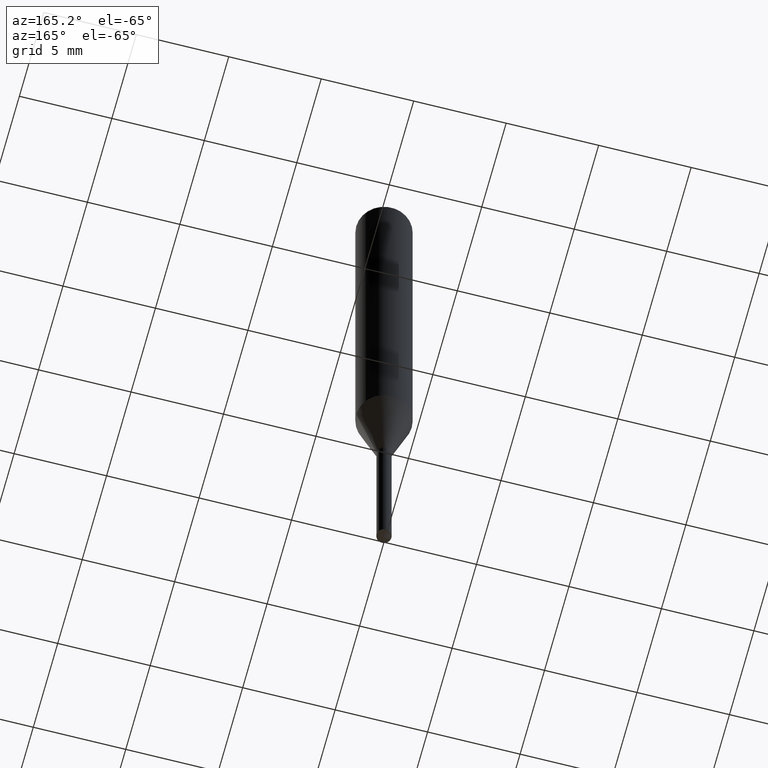
[diagram: clean part render]
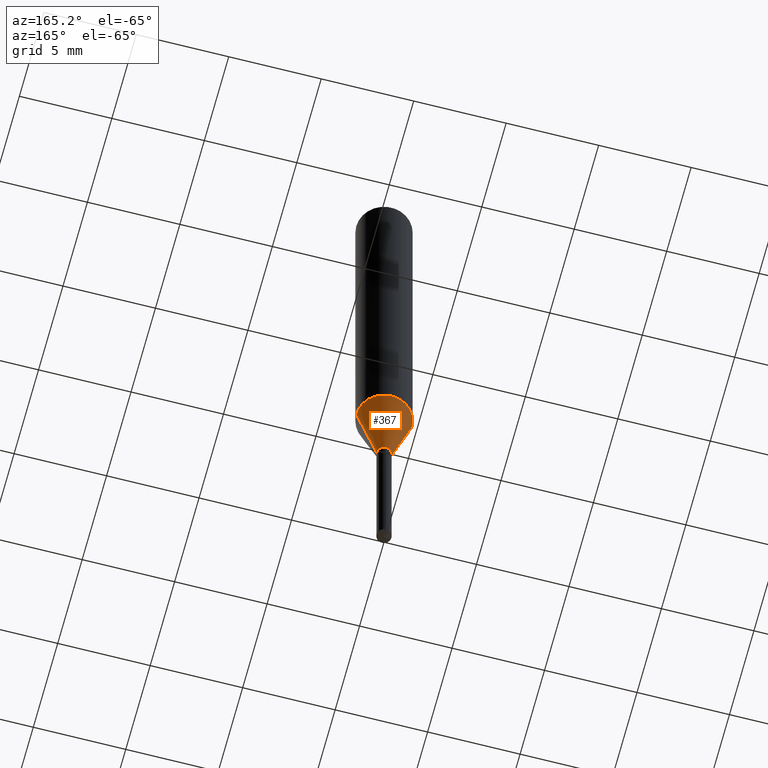
[diagram: same view with one face highlighted and labeled with its STEP entity id]
A machine part, auxiliary view. The second image highlights one B-rep face of the part: STEP entity #367.
In plain terms, the highlighted conical surface has half-angle 15 deg.
Its self-contained STEP definition (entity closure, byte-faithful):
#2 = VECTOR ( 'NONE', #227, 39.37007874015747433 ) ;
#12 = AXIS2_PLACEMENT_3D ( 'NONE', #336, #126, #454 ) ;
#33 = VERTEX_POINT ( 'NONE', #413 ) ;
#34 = LINE ( 'NONE', #471, #119 ) ;
#51 = DIRECTION ( 'NONE',  ( 1.000000000000000000, -6.982962677686268288E-15, 0.000000000000000000 ) ) ;
#71 = ORIENTED_EDGE ( 'NONE', *, *, #188, .F. ) ;
#79 = FACE_OUTER_BOUND ( 'NONE', #226, .T. ) ;
#118 = CARTESIAN_POINT ( 'NONE',  ( 2.665071904980561815E-29, -3.805016363071259851E-15, -1.089799999999999880 ) ) ;
#119 = VECTOR ( 'NONE', #214, 39.37007874015747433 ) ;
#121 = DIRECTION ( 'NONE',  ( -2.445468806185136597E-29, 3.491481338843145583E-15, 1.000000000000000000 ) ) ;
#126 = DIRECTION ( 'NONE',  ( -2.445468806185136597E-29, 3.491481338843145583E-15, 1.000000000000000000 ) ) ;
#127 = ORIENTED_EDGE ( 'NONE', *, *, #142, .F. ) ;
#138 = AXIS2_PLACEMENT_3D ( 'NONE', #118, #262, #370 ) ;
#142 = EDGE_CURVE ( 'NONE', #33, #461, #34, .T. ) ;
#188 = EDGE_CURVE ( 'NONE', #461, #285, #202, .T. ) ;
#190 = CIRCLE ( 'NONE', #138, 0.01575000000000000011 ) ;
#202 = CIRCLE ( 'NONE', #289, 0.05905000000000010241 ) ;
#214 = DIRECTION ( 'NONE',  ( 0.2588190451025213501, 1.565188264969621968E-15, 0.9659258262890682012 ) ) ;
#226 = EDGE_LOOP ( 'NONE', ( #320, #366, #71, #127 ) ) ;
#227 = DIRECTION ( 'NONE',  ( -0.2588190451025213501, 5.211531920934551042E-15, 0.9659258262890682012 ) ) ;
#244 = EDGE_CURVE ( 'NONE', #480, #285, #277, .T. ) ;
#262 = DIRECTION ( 'NONE',  ( -2.445468806185136597E-29, 3.491481338843145583E-15, 1.000000000000000000 ) ) ;
#268 = CARTESIAN_POINT ( 'NONE',  ( -0.05905000000000011628, -2.821225174619474378E-15, -0.9282022000322674993 ) ) ;
#277 = LINE ( 'NONE', #328, #2 ) ;
#278 = CARTESIAN_POINT ( 'NONE',  ( 0.05905000000000011628, -3.653144606203188791E-15, -0.9282022000322674993 ) ) ;
#285 = VERTEX_POINT ( 'NONE', #268 ) ;
#289 = AXIS2_PLACEMENT_3D ( 'NONE', #305, #121, #51 ) ;
#305 = CARTESIAN_POINT ( 'NONE',  ( 2.269889526011326603E-29, -3.240800660085814660E-15, -0.9282022000322674993 ) ) ;
#320 = ORIENTED_EDGE ( 'NONE', *, *, #346, .T. ) ;
#328 = CARTESIAN_POINT ( 'NONE',  ( -0.01575000000000000011, -3.693105882189043775E-15, -1.089799999999999880 ) ) ;
#336 = CARTESIAN_POINT ( 'NONE',  ( 2.665071904980561815E-29, -3.805016363071259851E-15, -1.089799999999999880 ) ) ;
#346 = EDGE_CURVE ( 'NONE', #33, #480, #190, .T. ) ;
#366 = ORIENTED_EDGE ( 'NONE', *, *, #244, .T. ) ;
#367 = ADVANCED_FACE ( 'NONE', ( #79 ), #428, .T. ) ;
#370 = DIRECTION ( 'NONE',  ( 1.000000000000000000, -6.982962677686255667E-15, 0.000000000000000000 ) ) ;
#413 = CARTESIAN_POINT ( 'NONE',  ( 0.01575000000000000011, -3.914998025244818520E-15, -1.089799999999999880 ) ) ;
#425 = CARTESIAN_POINT ( 'NONE',  ( -0.01575000000000000011, -3.700437993000614090E-15, -1.089799999999999880 ) ) ;
#428 = CONICAL_SURFACE ( 'NONE', #12, 0.01575000000000000011, 0.2617993877991500740 ) ;
#454 = DIRECTION ( 'NONE',  ( 1.000000000000000000, -6.982962677686255667E-15, 0.000000000000000000 ) ) ;
#461 = VERTEX_POINT ( 'NONE', #278 ) ;
#471 = CARTESIAN_POINT ( 'NONE',  ( 0.01575000000000000011, -3.914998025244818520E-15, -1.089799999999999880 ) ) ;
#480 = VERTEX_POINT ( 'NONE', #425 ) ;